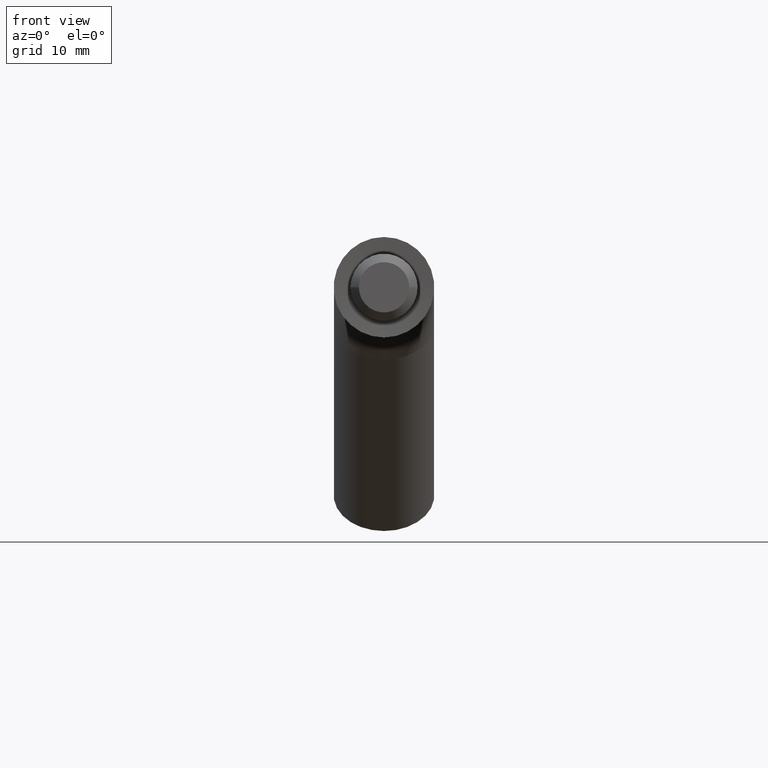
[diagram: clean part render]
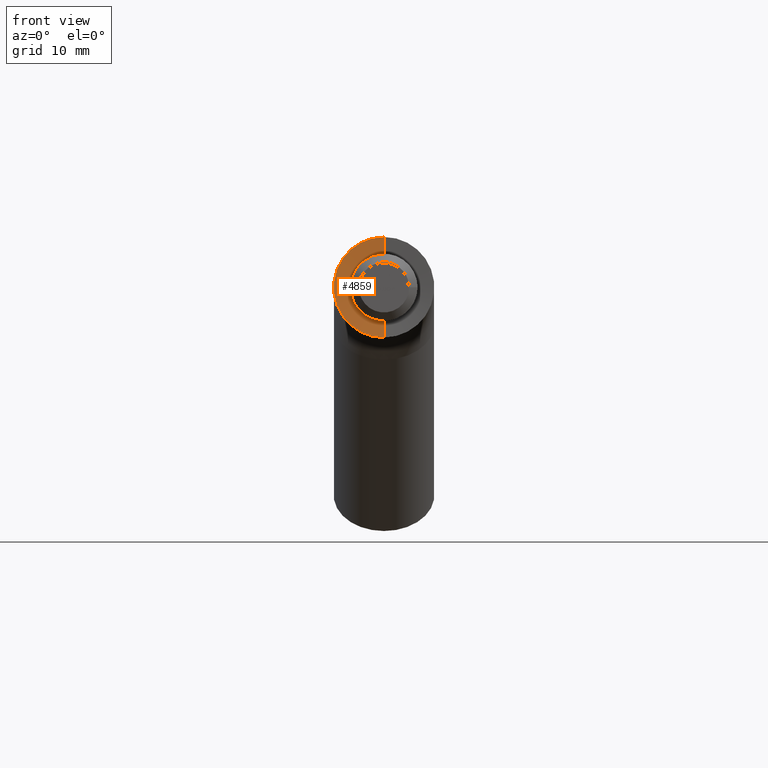
[diagram: same view with one face highlighted and labeled with its STEP entity id]
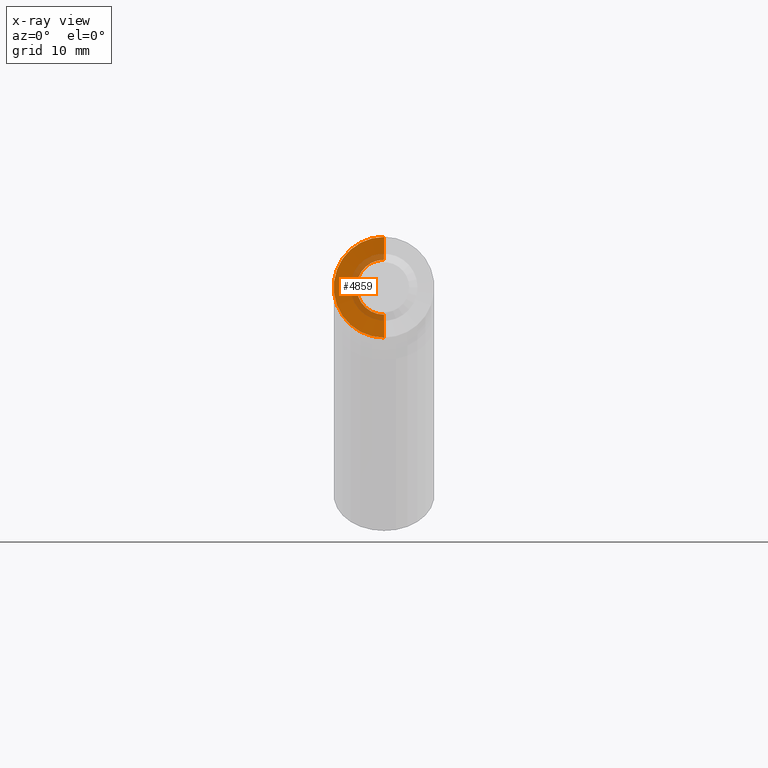
[diagram: x-ray of the same camera — body ghosted, the highlighted face saturated]
A machine part, front view. The second image highlights one B-rep face of the part: STEP entity #4859.
The next image is the same camera in x-ray: the body ghosted, the highlighted face saturated — about 21% of this face is hidden behind the body in this view.
In plain terms, the highlighted conical surface has half-angle 85 deg.
Its self-contained STEP definition (entity closure, byte-faithful):
#654 = VECTOR ( 'NONE', #11989, 1000.000000000000000 ) ;
#949 = ORIENTED_EDGE ( 'NONE', *, *, #12135, .F. ) ;
#1807 = CONICAL_SURFACE ( 'NONE', #6052, 7.000000000000000000, 1.483529864195187100 ) ;
#1897 = AXIS2_PLACEMENT_3D ( 'NONE', #5398, #6357, #4397 ) ;
#2129 = VERTEX_POINT ( 'NONE', #7003 ) ;
#2191 = DIRECTION ( 'NONE',  ( 0.0000000000000000000, 0.0000000000000000000, -1.000000000000000000 ) ) ;
#2287 = CARTESIAN_POINT ( 'NONE',  ( 0.0000000000000000000, 0.3261762033592852100, -3.271788935686912800 ) ) ;
#2496 = VECTOR ( 'NONE', #7183, 1000.000000000000000 ) ;
#3218 = DIRECTION ( 'NONE',  ( -0.0000000000000000000, -1.000000000000000000, -0.0000000000000000000 ) ) ;
#3262 = DIRECTION ( 'NONE',  ( 0.0000000000000000000, 1.000000000000000000, 0.0000000000000000000 ) ) ;
#3306 = CIRCLE ( 'NONE', #1897, 6.000000000000000900 ) ;
#3420 = CARTESIAN_POINT ( 'NONE',  ( 0.0000000000000000000, 0.0000000000000000000, -7.000000000000000000 ) ) ;
#4025 = VERTEX_POINT ( 'NONE', #9772 ) ;
#4154 = DIRECTION ( 'NONE',  ( 0.0000000000000000000, 0.0000000000000000000, -1.000000000000000000 ) ) ;
#4397 = DIRECTION ( 'NONE',  ( 0.0000000000000000000, 0.0000000000000000000, -1.000000000000000000 ) ) ;
#4843 = EDGE_CURVE ( 'NONE', #9504, #2129, #9645, .T. ) ;
#4859 = ADVANCED_FACE ( 'NONE', ( #8131 ), #1807, .F. ) ;
#5304 = CARTESIAN_POINT ( 'NONE',  ( 0.0000000000000000000, 0.08748866352591695700, -6.000000000000000900 ) ) ;
#5398 = CARTESIAN_POINT ( 'NONE',  ( 0.0000000000000000000, 0.08748866352591695700, 0.0000000000000000000 ) ) ;
#5751 = LINE ( 'NONE', #10114, #654 ) ;
#6052 = AXIS2_PLACEMENT_3D ( 'NONE', #12100, #3218, #4154 ) ;
#6163 = CARTESIAN_POINT ( 'NONE',  ( 0.0000000000000000000, 0.3261762033592852100, 0.0000000000000000000 ) ) ;
#6357 = DIRECTION ( 'NONE',  ( 0.0000000000000000000, 1.000000000000000000, 0.0000000000000000000 ) ) ;
#6518 = ORIENTED_EDGE ( 'NONE', *, *, #9035, .F. ) ;
#6956 = AXIS2_PLACEMENT_3D ( 'NONE', #6163, #3262, #2191 ) ;
#7003 = CARTESIAN_POINT ( 'NONE',  ( 5.677333321229412000E-016, 0.3261762033592852100, 3.271788935686912800 ) ) ;
#7037 = VERTEX_POINT ( 'NONE', #5304 ) ;
#7183 = DIRECTION ( 'NONE',  ( 0.0000000000000000000, -0.08715574274765128200, -0.9961946980917461000 ) ) ;
#7749 = EDGE_LOOP ( 'NONE', ( #8484, #9183, #6518, #949 ) ) ;
#8131 = FACE_OUTER_BOUND ( 'NONE', #7749, .T. ) ;
#8484 = ORIENTED_EDGE ( 'NONE', *, *, #4843, .T. ) ;
#9035 = EDGE_CURVE ( 'NONE', #7037, #4025, #3306, .T. ) ;
#9183 = ORIENTED_EDGE ( 'NONE', *, *, #10557, .T. ) ;
#9504 = VERTEX_POINT ( 'NONE', #2287 ) ;
#9645 = CIRCLE ( 'NONE', #6956, 3.271788935686912800 ) ;
#9772 = CARTESIAN_POINT ( 'NONE',  ( 7.347880794884120700E-016, 0.08748866352591695700, 6.000000000000000900 ) ) ;
#10114 = CARTESIAN_POINT ( 'NONE',  ( 8.572527594031473200E-016, 0.0000000000000000000, 7.000000000000000000 ) ) ;
#10180 = LINE ( 'NONE', #3420, #2496 ) ;
#10557 = EDGE_CURVE ( 'NONE', #2129, #4025, #5751, .T. ) ;
#11989 = DIRECTION ( 'NONE',  ( 1.219986648345620700E-016, -0.08715574274765128200, 0.9961946980917461000 ) ) ;
#12100 = CARTESIAN_POINT ( 'NONE',  ( 0.0000000000000000000, 0.0000000000000000000, 0.0000000000000000000 ) ) ;
#12135 = EDGE_CURVE ( 'NONE', #9504, #7037, #10180, .T. ) ;